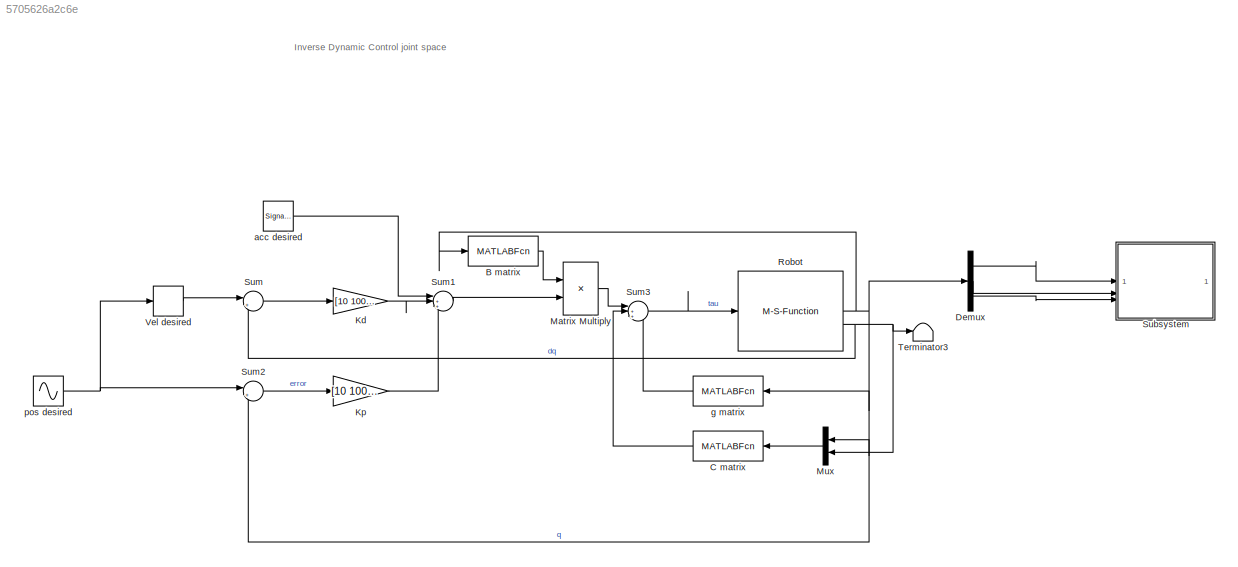
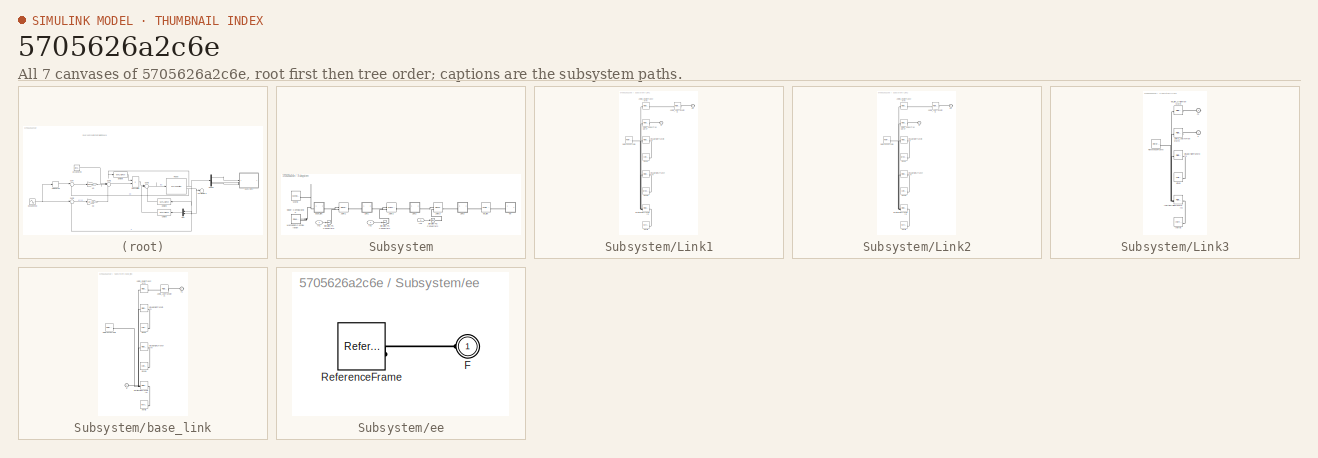
[diagram: thumbnail index - all 7 canvases of the model, root first then tree order]
MODEL slx_5705626a2c6e
KIND model
CONFIG AbsTol = auto
CONFIG EnableMultiTasking = off
CONFIG FixedStep = auto
CONFIG MaxStep = auto
CONFIG MinStep = auto
CONFIG RelTol = auto
CONFIG SampleTimeConstraint = Unconstrained
CONFIG SolverName = VariableStepAuto
CONFIG StartTime = 0.0
CONFIG StopTime = 10.0
BLOCK [MATLABFcn] B matrix
  MATLABFcn = robotStructure.func.Bmatrix(u(1), u(2), u(3))
  Output1D = off
  OutputSignalType = real
BLOCK [MATLABFcn] C matrix
  MATLABFcn = robotStructure.func.Cmatrix(u(1), u(2), u(3), u(4), u(5), u(6)) * [u(4); u(5); u(6)]
  OutputDimensions = 3
  OutputSignalType = real
BLOCK [Demux] Demux
  Outputs = 3
BLOCK [Gain] Kd
  Gain = [10 100 1]
BLOCK [Gain] Kp
  Gain = [10 100 1]
BLOCK [Product] Matrix Multiply
  Multiplication = Matrix(*)
BLOCK [Mux] Mux
  DisplayOption = bar
  Inputs = 2
  NameLocation = top
BLOCK [M-S-Function] Robot
  FunctionName = robotDynamicsModel
  NameLocation = top
  Parameters = robotStructure, [0 0 pi/4], [2 2 2]
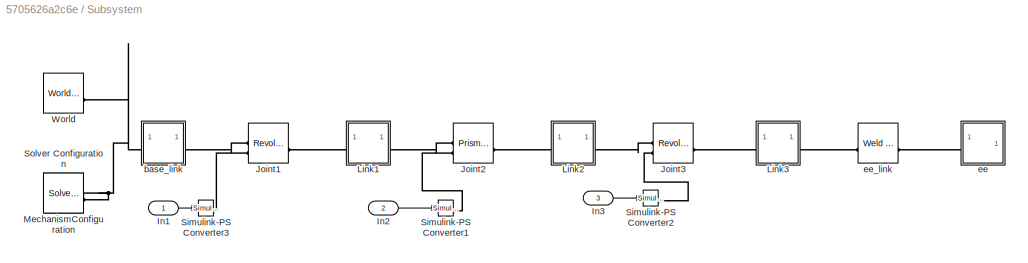
BLOCK [SubSystem] Subsystem
BLOCK [Inport] Subsystem/In1
BLOCK [Inport] Subsystem/In2
  Port = 2
BLOCK [Inport] Subsystem/In3
  Port = 3
BLOCK [Reference] Subsystem/Joint1  REF=sm_lib/Joints/Revolute Joint
  SourceBlock = sm_lib/Joints/Revolute Joint
  SourceType = Revolute Joint
BLOCK [Reference] Subsystem/Joint2  REF=sm_lib/Joints/Prismatic
Joint
  SourceBlock = sm_lib/Joints/Prismatic\nJoint
  SourceType = Prismatic\nJoint
BLOCK [Reference] Subsystem/Joint3  REF=sm_lib/Joints/Revolute Joint
  SourceBlock = sm_lib/Joints/Revolute Joint
  SourceType = Revolute Joint
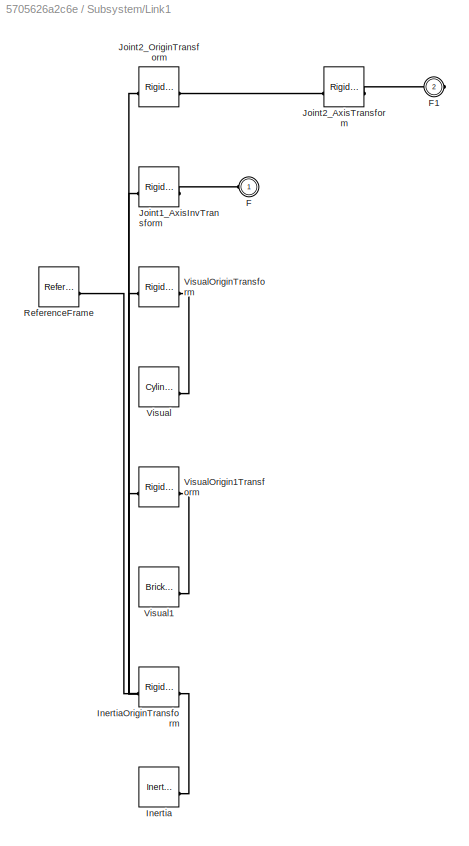
BLOCK [SubSystem] Subsystem/Link1
BLOCK [PMIOPort] Subsystem/Link1/F
  Side = Left
BLOCK [PMIOPort] Subsystem/Link1/F1
  Port = 2
  Side = Right
BLOCK [Reference] Subsystem/Link1/Inertia  REF=sm_lib/Body Elements/Inertia
  SourceBlock = sm_lib/Body Elements/Inertia
  SourceType = Inertia
BLOCK [Reference] Subsystem/Link1/InertiaOriginTransform  REF=sm_lib/Frames and
Transforms/Rigid
Transform
  SourceBlock = sm_lib/Frames and\nTransforms/Rigid\nTransform
  SourceType = Rigid\nTransform
BLOCK [Reference] Subsystem/Link1/Joint1_AxisInvTransform  REF=sm_lib/Frames and
Transforms/Rigid
Transform
  SourceBlock = sm_lib/Frames and\nTransforms/Rigid\nTransform
  SourceType = Rigid\nTransform
BLOCK [Reference] Subsystem/Link1/Joint2_AxisTransform  REF=sm_lib/Frames and
Transforms/Rigid
Transform
  SourceBlock = sm_lib/Frames and\nTransforms/Rigid\nTransform
  SourceType = Rigid\nTransform
BLOCK [Reference] Subsystem/Link1/Joint2_OriginTransform  REF=sm_lib/Frames and
Transforms/Rigid
Transform
  SourceBlock = sm_lib/Frames and\nTransforms/Rigid\nTransform
  SourceType = Rigid\nTransform
BLOCK [Reference] Subsystem/Link1/ReferenceFrame  REF=sm_lib/Frames and
Transforms/Reference
Frame
  SourceBlock = sm_lib/Frames and\nTransforms/Reference\nFrame
  SourceType = Reference\nFrame
BLOCK [Reference] Subsystem/Link1/Visual  REF=sm_lib/Body Elements/Cylindrical Solid
  SourceBlock = sm_lib/Body Elements/Cylindrical Solid
  SourceType = Cylindrical Solid
BLOCK [Reference] Subsystem/Link1/Visual1  REF=sm_lib/Body Elements/Brick Solid
  SourceBlock = sm_lib/Body Elements/Brick Solid
  SourceType = Brick Solid
BLOCK [Reference] Subsystem/Link1/VisualOrigin1Transform  REF=sm_lib/Frames and
Transforms/Rigid
Transform
  SourceBlock = sm_lib/Frames and\nTransforms/Rigid\nTransform
  SourceType = Rigid\nTransform
BLOCK [Reference] Subsystem/Link1/VisualOriginTransform  REF=sm_lib/Frames and
Transforms/Rigid
Transform
  SourceBlock = sm_lib/Frames and\nTransforms/Rigid\nTransform
  SourceType = Rigid\nTransform
BLOCK [SubSystem] Subsystem/Link2
BLOCK [PMIOPort] Subsystem/Link2/F
  Side = Left
BLOCK [PMIOPort] Subsystem/Link2/F1
  Port = 2
  Side = Right
BLOCK [Reference] Subsystem/Link2/Inertia  REF=sm_lib/Body Elements/Inertia
  SourceBlock = sm_lib/Body Elements/Inertia
  SourceType = Inertia
BLOCK [Reference] Subsystem/Link2/InertiaOriginTransform  REF=sm_lib/Frames and
Transforms/Rigid
Transform
  SourceBlock = sm_lib/Frames and\nTransforms/Rigid\nTransform
  SourceType = Rigid\nTransform
BLOCK [Reference] Subsystem/Link2/Joint2_AxisInvTransform  REF=sm_lib/Frames and
Transforms/Rigid
Transform
  SourceBlock = sm_lib/Frames and\nTransforms/Rigid\nTransform
  SourceType = Rigid\nTransform
BLOCK [Reference] Subsystem/Link2/Joint3_AxisTransform  REF=sm_lib/Frames and
Transforms/Rigid
Transform
  SourceBlock = sm_lib/Frames and\nTransforms/Rigid\nTransform
  SourceType = Rigid\nTransform
BLOCK [Reference] Subsystem/Link2/Joint3_OriginTransform  REF=sm_lib/Frames and
Transforms/Rigid
Transform
  SourceBlock = sm_lib/Frames and\nTransforms/Rigid\nTransform
  SourceType = Rigid\nTransform
BLOCK [Reference] Subsystem/Link2/ReferenceFrame  REF=sm_lib/Frames and
Transforms/Reference
Frame
  SourceBlock = sm_lib/Frames and\nTransforms/Reference\nFrame
  SourceType = Reference\nFrame
BLOCK [Reference] Subsystem/Link2/Visual  REF=sm_lib/Body Elements/Brick Solid
  SourceBlock = sm_lib/Body Elements/Brick Solid
  SourceType = Brick Solid
BLOCK [Reference] Subsystem/Link2/Visual1  REF=sm_lib/Body Elements/Cylindrical Solid
  SourceBlock = sm_lib/Body Elements/Cylindrical Solid
  SourceType = Cylindrical Solid
BLOCK [Reference] Subsystem/Link2/VisualOrigin1Transform  REF=sm_lib/Frames and
Transforms/Rigid
Transform
  SourceBlock = sm_lib/Frames and\nTransforms/Rigid\nTransform
  SourceType = Rigid\nTransform
BLOCK [Reference] Subsystem/Link2/VisualOriginTransform  REF=sm_lib/Frames and
Transforms/Rigid
Transform
  SourceBlock = sm_lib/Frames and\nTransforms/Rigid\nTransform
  SourceType = Rigid\nTransform
BLOCK [SubSystem] Subsystem/Link3
BLOCK [PMIOPort] Subsystem/Link3/F
  Side = Left
BLOCK [PMIOPort] Subsystem/Link3/F1
  Port = 2
  Side = Right
BLOCK [Reference] Subsystem/Link3/Inertia  REF=sm_lib/Body Elements/Inertia
  SourceBlock = sm_lib/Body Elements/Inertia
  SourceType = Inertia
BLOCK [Reference] Subsystem/Link3/InertiaOriginTransform  REF=sm_lib/Frames and
Transforms/Rigid
Transform
  SourceBlock = sm_lib/Frames and\nTransforms/Rigid\nTransform
  SourceType = Rigid\nTransform
BLOCK [Reference] Subsystem/Link3/Joint3_AxisInvTransform  REF=sm_lib/Frames and
Transforms/Rigid
Transform
  SourceBlock = sm_lib/Frames and\nTransforms/Rigid\nTransform
  SourceType = Rigid\nTransform
BLOCK [Reference] Subsystem/Link3/ReferenceFrame  REF=sm_lib/Frames and
Transforms/Reference
Frame
  SourceBlock = sm_lib/Frames and\nTransforms/Reference\nFrame
  SourceType = Reference\nFrame
BLOCK [Reference] Subsystem/Link3/Visual  REF=sm_lib/Body Elements/Cylindrical Solid
  SourceBlock = sm_lib/Body Elements/Cylindrical Solid
  SourceType = Cylindrical Solid
BLOCK [Reference] Subsystem/Link3/VisualOriginTransform  REF=sm_lib/Frames and
Transforms/Rigid
Transform
  SourceBlock = sm_lib/Frames and\nTransforms/Rigid\nTransform
  SourceType = Rigid\nTransform
BLOCK [Reference] Subsystem/Link3/ee_link_OriginTransform  REF=sm_lib/Frames and
Transforms/Rigid
Transform
  SourceBlock = sm_lib/Frames and\nTransforms/Rigid\nTransform
  SourceType = Rigid\nTransform
BLOCK [Reference] Subsystem/MechanismConfiguration  REF=sm_lib/Utilities/Mechanism
Configuration
  SourceBlock = sm_lib/Utilities/Mechanism\nConfiguration
  SourceType = Mechanism\nConfiguration
BLOCK [Reference] Subsystem/Simulink-PS Converter1  REF=nesl_utility/Simulink-PS
Converter
  SourceBlock = nesl_utility/Simulink-PS\nConverter
  SourceType = Simulink-PS\nConverter
BLOCK [Reference] Subsystem/Simulink-PS Converter2  REF=nesl_utility/Simulink-PS
Converter
  SourceBlock = nesl_utility/Simulink-PS\nConverter
  SourceType = Simulink-PS\nConverter
BLOCK [Reference] Subsystem/Simulink-PS Converter3  REF=nesl_utility/Simulink-PS
Converter
  SourceBlock = nesl_utility/Simulink-PS\nConverter
  SourceType = Simulink-PS\nConverter
BLOCK [Reference] Subsystem/Solver Configuration  REF=nesl_utility/Solver
Configuration
  SourceBlock = nesl_utility/Solver\nConfiguration
  SourceType = Solver\nConfiguration
BLOCK [Reference] Subsystem/World  REF=sm_lib/Frames and
Transforms/World Frame
  SourceBlock = sm_lib/Frames and\nTransforms/World Frame
  SourceType = World Frame
BLOCK [SubSystem] Subsystem/base_link
BLOCK [PMIOPort] Subsystem/base_link/F
  Side = Left
BLOCK [PMIOPort] Subsystem/base_link/F1
  Port = 2
  Side = Right
BLOCK [Reference] Subsystem/base_link/Inertia  REF=sm_lib/Body Elements/Inertia
  SourceBlock = sm_lib/Body Elements/Inertia
  SourceType = Inertia
BLOCK [Reference] Subsystem/base_link/InertiaOriginTransform  REF=sm_lib/Frames and
Transforms/Rigid
Transform
  SourceBlock = sm_lib/Frames and\nTransforms/Rigid\nTransform
  SourceType = Rigid\nTransform
BLOCK [Reference] Subsystem/base_link/Joint1_AxisTransform  REF=sm_lib/Frames and
Transforms/Rigid
Transform
  SourceBlock = sm_lib/Frames and\nTransforms/Rigid\nTransform
  SourceType = Rigid\nTransform
BLOCK [Reference] Subsystem/base_link/Joint1_OriginTransform  REF=sm_lib/Frames and
Transforms/Rigid
Transform
  SourceBlock = sm_lib/Frames and\nTransforms/Rigid\nTransform
  SourceType = Rigid\nTransform
BLOCK [Reference] Subsystem/base_link/ReferenceFrame  REF=sm_lib/Frames and
Transforms/Reference
Frame
  SourceBlock = sm_lib/Frames and\nTransforms/Reference\nFrame
  SourceType = Reference\nFrame
BLOCK [Reference] Subsystem/base_link/Visual  REF=sm_lib/Body Elements/Cylindrical Solid
  SourceBlock = sm_lib/Body Elements/Cylindrical Solid
  SourceType = Cylindrical Solid
BLOCK [Reference] Subsystem/base_link/Visual1  REF=sm_lib/Body Elements/Cylindrical Solid
  SourceBlock = sm_lib/Body Elements/Cylindrical Solid
  SourceType = Cylindrical Solid
BLOCK [Reference] Subsystem/base_link/VisualOrigin1Transform  REF=sm_lib/Frames and
Transforms/Rigid
Transform
  SourceBlock = sm_lib/Frames and\nTransforms/Rigid\nTransform
  SourceType = Rigid\nTransform
BLOCK [Reference] Subsystem/base_link/VisualOriginTransform  REF=sm_lib/Frames and
Transforms/Rigid
Transform
  SourceBlock = sm_lib/Frames and\nTransforms/Rigid\nTransform
  SourceType = Rigid\nTransform
BLOCK [SubSystem] Subsystem/ee
BLOCK [PMIOPort] Subsystem/ee/F
  Side = Left
BLOCK [Reference] Subsystem/ee/ReferenceFrame  REF=sm_lib/Frames and
Transforms/Reference
Frame
  SourceBlock = sm_lib/Frames and\nTransforms/Reference\nFrame
  SourceType = Reference\nFrame
BLOCK [Reference] Subsystem/ee_link  REF=sm_lib/Joints/Weld Joint
  SourceBlock = sm_lib/Joints/Weld Joint
  SourceType = Weld Joint
BLOCK [Sum] Sum
  Inputs = |+-
BLOCK [Sum] Sum1
  Inputs = |+++
BLOCK [Sum] Sum2
  Inputs = |+-
BLOCK [Sum] Sum3
  Inputs = |+++
BLOCK [Terminator] Terminator3
BLOCK [Derivative] Vel desired
BLOCK [SignalGenerator] acc desired
  Amplitude = -0.2
  Units = rad/sec
BLOCK [MATLABFcn] g matrix
  MATLABFcn = robotStructure.func.Gmatrix(u(1), u(2), u(3))
  OutputDimensions = 3
  OutputSignalType = real
BLOCK [Sin] pos desired
  Amplitude = 0.2
  SampleTime = 0
ANNOTATION (root): Inverse Dynamic Control joint space
LINE B matrix:1 -> Matrix Multiply:1
LINE C matrix:1 -> Sum3:2
LINE Demux:1 -> Subsystem:1
LINE Demux:2 -> Subsystem:2
LINE Demux:3 -> Subsystem:3
LINE Kd:1 -> Sum1:2
LINE Kp:1 -> Sum1:3
LINE Matrix Multiply:1 -> Sum3:1
LINE Mux:1 -> C matrix:1
NET Robot:1 -> B matrix:1, Demux:1, Mux:1, Sum2:2, g matrix:1
NET Robot:2 -> Mux:2, Sum:2, Terminator3:1
LINE Subsystem/In1:1 -> Subsystem/Simulink-PS Converter3:1
LINE Subsystem/In2:1 -> Subsystem/Simulink-PS Converter1:1
LINE Subsystem/In3:1 -> Subsystem/Simulink-PS Converter2:1
LINE Sum1:1 -> Matrix Multiply:2
LINE Sum2:1 -> Kp:1
LINE Sum3:1 -> Robot:1
LINE Sum:1 -> Kd:1
LINE Vel desired:1 -> Sum:1
LINE acc desired:1 -> Sum1:1
LINE g matrix:1 -> Sum3:3
NET pos desired:1 -> Sum2:1, Vel desired:1
PLINE Subsystem/Joint1:LConn1 -- Subsystem/base_link:RConn1
PLINE Subsystem/Joint1:LConn2 -- Subsystem/Simulink-PS Converter3:RConn1
PLINE Subsystem/Joint1:RConn1 -- Subsystem/Link1:LConn1
PLINE Subsystem/Joint2:LConn1 -- Subsystem/Link1:RConn1
PLINE Subsystem/Joint2:LConn2 -- Subsystem/Simulink-PS Converter1:RConn1
PLINE Subsystem/Joint2:RConn1 -- Subsystem/Link2:LConn1
PLINE Subsystem/Joint3:LConn1 -- Subsystem/Link2:RConn1
PLINE Subsystem/Joint3:LConn2 -- Subsystem/Simulink-PS Converter2:RConn1
PLINE Subsystem/Joint3:RConn1 -- Subsystem/Link3:LConn1
PLINE Subsystem/Link1/F1:RConn1 -- Subsystem/Link1/Joint2_AxisTransform:RConn1
PLINE Subsystem/Link1/F:RConn1 -- Subsystem/Link1/Joint1_AxisInvTransform:RConn1
PLINE Subsystem/Link1/Inertia:RConn1 -- Subsystem/Link1/InertiaOriginTransform:RConn1
PNET net1: Subsystem/Link1/InertiaOriginTransform:LConn1 -- Subsystem/Link1/Joint1_AxisInvTransform:LConn1 -- Subsystem/Link1/Joint2_OriginTransform:LConn1 -- Subsystem/Link1/ReferenceFrame:RConn1 -- Subsystem/Link1/VisualOrigin1Transform:LConn1 -- Subsystem/Link1/VisualOriginTransform:LConn1
PLINE Subsystem/Link1/Joint2_AxisTransform:LConn1 -- Subsystem/Link1/Joint2_OriginTransform:RConn1
PLINE Subsystem/Link1/Visual1:RConn1 -- Subsystem/Link1/VisualOrigin1Transform:RConn1
PLINE Subsystem/Link1/Visual:RConn1 -- Subsystem/Link1/VisualOriginTransform:RConn1
PLINE Subsystem/Link2/F1:RConn1 -- Subsystem/Link2/Joint3_AxisTransform:RConn1
PLINE Subsystem/Link2/F:RConn1 -- Subsystem/Link2/Joint2_AxisInvTransform:RConn1
PLINE Subsystem/Link2/Inertia:RConn1 -- Subsystem/Link2/InertiaOriginTransform:RConn1
PNET net2: Subsystem/Link2/InertiaOriginTransform:LConn1 -- Subsystem/Link2/Joint2_AxisInvTransform:LConn1 -- Subsystem/Link2/Joint3_OriginTransform:LConn1 -- Subsystem/Link2/ReferenceFrame:RConn1 -- Subsystem/Link2/VisualOrigin1Transform:LConn1 -- Subsystem/Link2/VisualOriginTransform:LConn1
PLINE Subsystem/Link2/Joint3_AxisTransform:LConn1 -- Subsystem/Link2/Joint3_OriginTransform:RConn1
PLINE Subsystem/Link2/Visual1:RConn1 -- Subsystem/Link2/VisualOrigin1Transform:RConn1
PLINE Subsystem/Link2/Visual:RConn1 -- Subsystem/Link2/VisualOriginTransform:RConn1
PLINE Subsystem/Link3/F1:RConn1 -- Subsystem/Link3/ee_link_OriginTransform:RConn1
PLINE Subsystem/Link3/F:RConn1 -- Subsystem/Link3/Joint3_AxisInvTransform:RConn1
PLINE Subsystem/Link3/Inertia:RConn1 -- Subsystem/Link3/InertiaOriginTransform:RConn1
PNET net3: Subsystem/Link3/InertiaOriginTransform:LConn1 -- Subsystem/Link3/Joint3_AxisInvTransform:LConn1 -- Subsystem/Link3/ReferenceFrame:RConn1 -- Subsystem/Link3/VisualOriginTransform:LConn1 -- Subsystem/Link3/ee_link_OriginTransform:LConn1
PLINE Subsystem/Link3/Visual:RConn1 -- Subsystem/Link3/VisualOriginTransform:RConn1
PLINE Subsystem/Link3:RConn1 -- Subsystem/ee_link:LConn1
PNET net4: Subsystem/MechanismConfiguration:RConn1 -- Subsystem/Solver Configuration:RConn1 -- Subsystem/World:RConn1 -- Subsystem/base_link:LConn1
PLINE Subsystem/base_link/F1:RConn1 -- Subsystem/base_link/Joint1_AxisTransform:RConn1
PNET net5: Subsystem/base_link/F:RConn1 -- Subsystem/base_link/InertiaOriginTransform:LConn1 -- Subsystem/base_link/Joint1_OriginTransform:LConn1 -- Subsystem/base_link/ReferenceFrame:RConn1 -- Subsystem/base_link/VisualOrigin1Transform:LConn1 -- Subsystem/base_link/VisualOriginTransform:LConn1
PLINE Subsystem/base_link/Inertia:RConn1 -- Subsystem/base_link/InertiaOriginTransform:RConn1
PLINE Subsystem/base_link/Joint1_AxisTransform:LConn1 -- Subsystem/base_link/Joint1_OriginTransform:RConn1
PLINE Subsystem/base_link/Visual1:RConn1 -- Subsystem/base_link/VisualOrigin1Transform:RConn1
PLINE Subsystem/base_link/Visual:RConn1 -- Subsystem/base_link/VisualOriginTransform:RConn1
PLINE Subsystem/ee/F:RConn1 -- Subsystem/ee/ReferenceFrame:RConn1
PLINE Subsystem/ee:LConn1 -- Subsystem/ee_link:RConn1
note: NET lines group one-source signal fan-out (src -> all destinations, sorted); 1:1 wires keep LINE; PNET lines group multi-terminal physical nets as a canonical sorted terminal list (undirected conserving connections); 2-terminal nets keep the pairwise PLINE form
